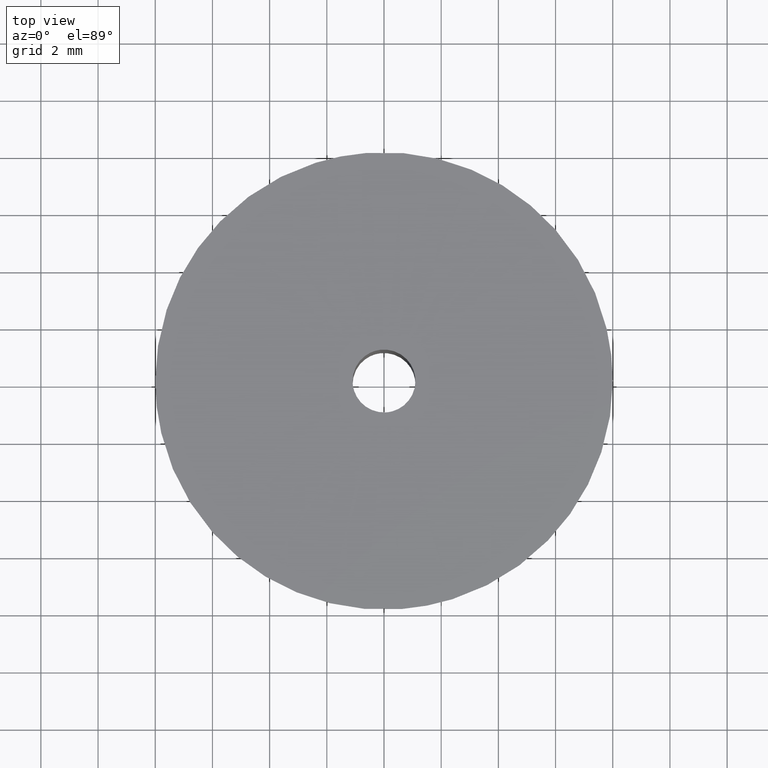
[diagram: clean part render]
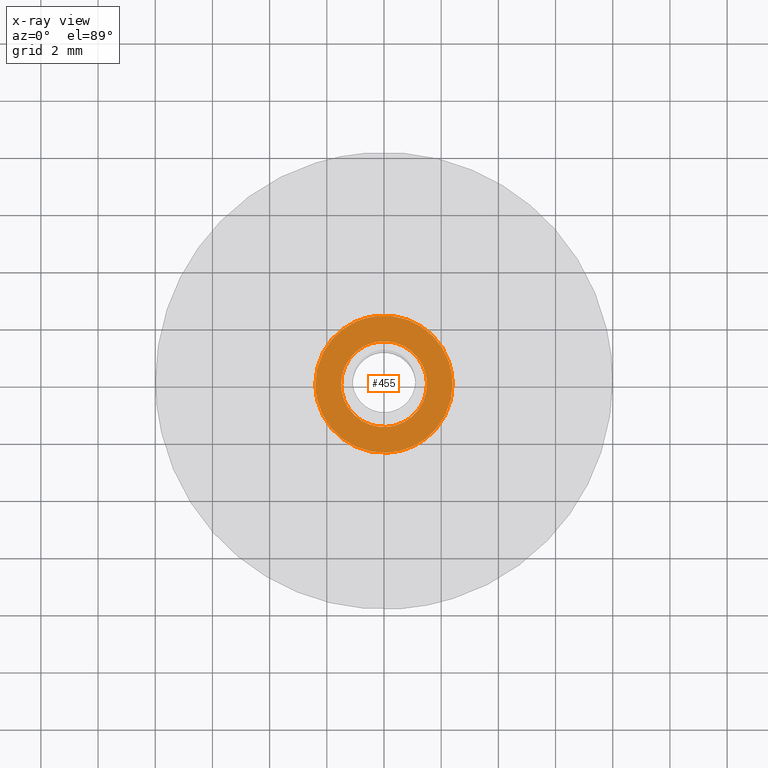
[diagram: x-ray — body ghosted, one internal face saturated and labeled with its STEP entity id]
A machine part, top view, then the same camera in x-ray: the body is ghosted and one INTERNAL B-rep face — a face not visible from any outside direction — is saturated and labeled: STEP entity #455.
In plain terms, the highlighted face is a freeform B-spline surface patch.
Its self-contained STEP definition (entity closure, byte-faithful):
#100=CARTESIAN_POINT('',(0.091572809311081,-1.497202197632262,5.500000000000000));
#101=VERTEX_POINT('',#100);
#107=CARTESIAN_POINT('',(1.500000000000000,0.0,5.500000000000000));
#108=VERTEX_POINT('',#107);
#109=CARTESIAN_POINT('',(1.500000000000000,0.0,5.500000000000000));
#110=CARTESIAN_POINT('',(1.500000000000001,-1.411059100341942,5.500000000000000));
#111=CARTESIAN_POINT('',(0.091572809311081,-1.497202197632263,5.500000000000000));
#119=(BOUNDED_CURVE()B_SPLINE_CURVE(2,(#109,#110,#111),.UNSPECIFIED.,.F.,.U.)B_SPLINE_CURVE_WITH_KNOTS((3,3),(0.500000000000000,0.739332962239942),.UNSPECIFIED.)CURVE()GEOMETRIC_REPRESENTATION_ITEM()RATIONAL_B_SPLINE_CURVE((1.0,0.719603993285540,0.976072041668859))REPRESENTATION_ITEM(''));
#120=EDGE_CURVE('',#108,#101,#119,.T.);
#122=CARTESIAN_POINT('',(-0.177051351996448,1.489514289544155,5.500000000000001));
#123=VERTEX_POINT('',#122);
#124=CARTESIAN_POINT('',(-0.177051351996448,1.489514289544155,5.500000000000001));
#125=CARTESIAN_POINT('',(-0.088836179489295,1.500000000000000,5.500000000000001));
#126=CARTESIAN_POINT('',(0.0,1.500000000000000,5.500000000000000));
#127=CARTESIAN_POINT('',(1.500000000000000,1.500000000000000,5.500000000000001));
#128=CARTESIAN_POINT('',(1.500000000000000,0.0,5.500000000000000));
#136=(BOUNDED_CURVE()B_SPLINE_CURVE(2,(#124,#125,#126,#127,#128),.UNSPECIFIED.,.F.,.U.)B_SPLINE_CURVE_WITH_KNOTS((3,2,3),(0.229562473513078,0.250000000000000,0.500000000000000),.UNSPECIFIED.)CURVE()GEOMETRIC_REPRESENTATION_ITEM()RATIONAL_B_SPLINE_CURVE((0.956026754182855,0.976055948330640,1.0,0.707106781186548,1.0))REPRESENTATION_ITEM(''));
#137=EDGE_CURVE('',#123,#108,#136,.T.);
#181=CARTESIAN_POINT('',(-1.500000000000000,0.0,5.500000000000000));
#182=VERTEX_POINT('',#181);
#183=CARTESIAN_POINT('',(-1.500000000000000,0.0,5.500000000000000));
#184=CARTESIAN_POINT('',(-1.500000000000000,1.332261788906676,5.499999999999999));
#185=CARTESIAN_POINT('',(-0.177051351996448,1.489514289544155,5.500000000000001));
#193=(BOUNDED_CURVE()B_SPLINE_CURVE(2,(#183,#184,#185),.UNSPECIFIED.,.F.,.U.)B_SPLINE_CURVE_WITH_KNOTS((3,3),(0.0,0.229562473513078),.UNSPECIFIED.)CURVE()GEOMETRIC_REPRESENTATION_ITEM()RATIONAL_B_SPLINE_CURVE((1.0,0.731050832855907,0.956026754182855))REPRESENTATION_ITEM(''));
#194=EDGE_CURVE('',#182,#123,#193,.T.);
#196=CARTESIAN_POINT('',(0.091572809311081,-1.497202197632263,5.500000000000000));
#197=CARTESIAN_POINT('',(0.045829144956703,-1.500000000000000,5.499999999999999));
#198=CARTESIAN_POINT('',(0.0,-1.500000000000000,5.500000000000000));
#199=CARTESIAN_POINT('',(-1.500000000000000,-1.500000000000000,5.500000000000001));
#200=CARTESIAN_POINT('',(-1.500000000000000,0.0,5.500000000000000));
#208=(BOUNDED_CURVE()B_SPLINE_CURVE(2,(#196,#197,#198,#199,#200),.UNSPECIFIED.,.F.,.U.)B_SPLINE_CURVE_WITH_KNOTS((3,2,3),(0.739332962239941,0.750000000000000,1.0),.UNSPECIFIED.)CURVE()GEOMETRIC_REPRESENTATION_ITEM()RATIONAL_B_SPLINE_CURVE((0.976072041668857,0.987502787901007,1.0,0.707106781186548,1.0))REPRESENTATION_ITEM(''));
#209=EDGE_CURVE('',#101,#182,#208,.T.);
#271=CARTESIAN_POINT('',(-0.283278596162415,2.383223287261046,5.500000000000000));
#272=VERTEX_POINT('',#271);
#278=CARTESIAN_POINT('',(2.400000000000000,0.0,5.500000000000000));
#279=VERTEX_POINT('',#278);
#280=CARTESIAN_POINT('',(-0.283278596162414,2.383223287261047,5.500000000000000));
#281=CARTESIAN_POINT('',(-0.142136084803074,2.400000000000000,5.500000000000000));
#282=CARTESIAN_POINT('',(0.0,2.400000000000000,5.500000000000000));
#283=CARTESIAN_POINT('',(2.400000000000000,2.400000000000000,5.500000000000000));
#284=CARTESIAN_POINT('',(2.400000000000000,0.0,5.500000000000000));
#292=(BOUNDED_CURVE()B_SPLINE_CURVE(2,(#280,#281,#282,#283,#284),.UNSPECIFIED.,.F.,.U.)B_SPLINE_CURVE_WITH_KNOTS((3,2,3),(0.229562726465960,0.250000000000000,0.500000000000000),.UNSPECIFIED.)CURVE()GEOMETRIC_REPRESENTATION_ITEM()RATIONAL_B_SPLINE_CURVE((0.956027249981456,0.976056244683376,1.0,0.707106781186547,1.0))REPRESENTATION_ITEM(''));
#293=EDGE_CURVE('',#272,#279,#292,.T.);
#295=CARTESIAN_POINT('',(0.146513496552320,-2.395523699594514,5.500000000000000));
#296=VERTEX_POINT('',#295);
#297=CARTESIAN_POINT('',(2.400000000000000,0.0,5.500000000000000));
#298=CARTESIAN_POINT('',(2.400000000000001,-2.257697391674891,5.499999999999999));
#299=CARTESIAN_POINT('',(0.146513496552320,-2.395523699594514,5.500000000000000));
#307=(BOUNDED_CURVE()B_SPLINE_CURVE(2,(#297,#298,#299),.UNSPECIFIED.,.F.,.U.)B_SPLINE_CURVE_WITH_KNOTS((3,3),(0.500000000000000,0.739333178208343),.UNSPECIFIED.)CURVE()GEOMETRIC_REPRESENTATION_ITEM()RATIONAL_B_SPLINE_CURVE((1.0,0.719603740262819,0.976072504530692))REPRESENTATION_ITEM(''));
#308=EDGE_CURVE('',#279,#296,#307,.T.);
#386=CARTESIAN_POINT('',(-2.400000000000000,0.0,5.500000000000000));
#387=VERTEX_POINT('',#386);
#388=CARTESIAN_POINT('',(0.146513496552320,-2.395523699594514,5.500000000000000));
#389=CARTESIAN_POINT('',(0.073325128547574,-2.400000000000000,5.500000000000001));
#390=CARTESIAN_POINT('',(0.0,-2.400000000000000,5.500000000000000));
#391=CARTESIAN_POINT('',(-2.400000000000000,-2.400000000000000,5.500000000000000));
#392=CARTESIAN_POINT('',(-2.400000000000000,0.0,5.500000000000000));
#400=(BOUNDED_CURVE()B_SPLINE_CURVE(2,(#388,#389,#390,#391,#392),.UNSPECIFIED.,.F.,.U.)B_SPLINE_CURVE_WITH_KNOTS((3,2,3),(0.739333178208343,0.750000000000000,1.0),.UNSPECIFIED.)CURVE()GEOMETRIC_REPRESENTATION_ITEM()RATIONAL_B_SPLINE_CURVE((0.976072504530692,0.987503040923729,1.0,0.707106781186547,1.0))REPRESENTATION_ITEM(''));
#401=EDGE_CURVE('',#296,#387,#400,.T.);
#403=CARTESIAN_POINT('',(-2.400000000000000,0.0,5.500000000000000));
#404=CARTESIAN_POINT('',(-2.400000000000000,2.131622075177927,5.500000000000000));
#405=CARTESIAN_POINT('',(-0.283278596162414,2.383223287261046,5.500000000000000));
#413=(BOUNDED_CURVE()B_SPLINE_CURVE(2,(#403,#404,#405),.UNSPECIFIED.,.F.,.U.)B_SPLINE_CURVE_WITH_KNOTS((3,3),(0.0,0.229562726465960),.UNSPECIFIED.)CURVE()GEOMETRIC_REPRESENTATION_ITEM()RATIONAL_B_SPLINE_CURVE((1.0,0.731050536503171,0.956027249981456))REPRESENTATION_ITEM(''));
#414=EDGE_CURVE('',#387,#272,#413,.T.);
#438=CARTESIAN_POINT('',(2.639760125873566,-2.639701576829901,5.500000000000000));
#439=CARTESIAN_POINT('',(-2.639760125873565,-2.639701576829901,5.500000000000000));
#440=CARTESIAN_POINT('',(2.639760125873566,2.639716339708319,5.500000000000000));
#441=CARTESIAN_POINT('',(-2.639760125873565,2.639716339708319,5.500000000000000));
#442=B_SPLINE_SURFACE_WITH_KNOTS('',1,1,((#438,#440),(#439,#441)),.UNSPECIFIED.,.F.,.F.,.U.,(2,2),(2,2),(0.0,5.279520251747131),(0.0,5.279417916538220),.UNSPECIFIED.);
#443=ORIENTED_EDGE('',*,*,#401,.F.);
#444=ORIENTED_EDGE('',*,*,#308,.F.);
#445=ORIENTED_EDGE('',*,*,#293,.F.);
#446=ORIENTED_EDGE('',*,*,#414,.F.);
#447=EDGE_LOOP('',(#443,#444,#445,#446));
#448=FACE_OUTER_BOUND('',#447,.T.);
#449=ORIENTED_EDGE('',*,*,#120,.T.);
#450=ORIENTED_EDGE('',*,*,#209,.T.);
#451=ORIENTED_EDGE('',*,*,#194,.T.);
#452=ORIENTED_EDGE('',*,*,#137,.T.);
#453=EDGE_LOOP('',(#449,#450,#451,#452));
#454=FACE_BOUND('',#453,.T.);
#455=ADVANCED_FACE('',(#448,#454),#442,.F.);